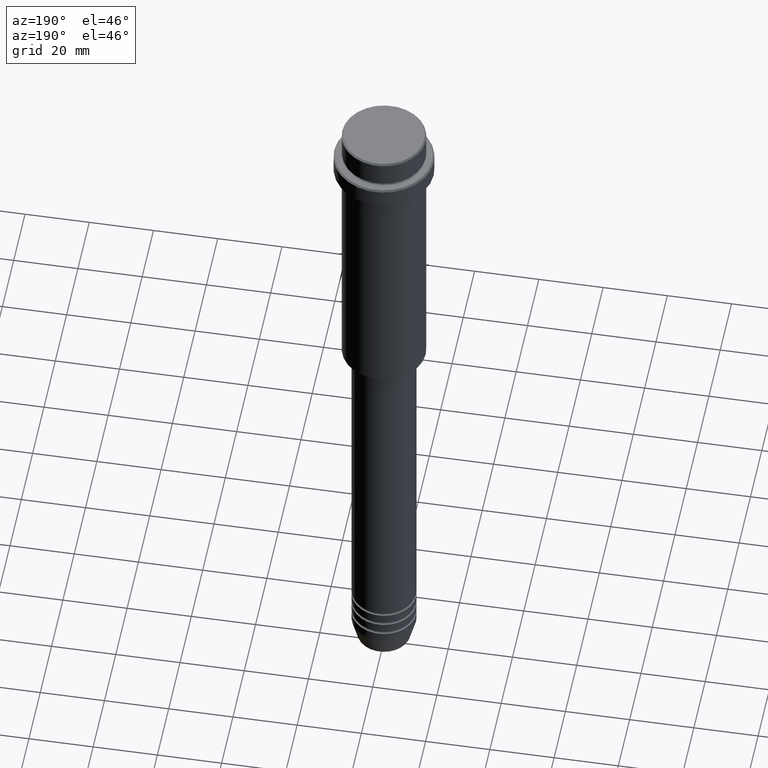
[diagram: clean part render]
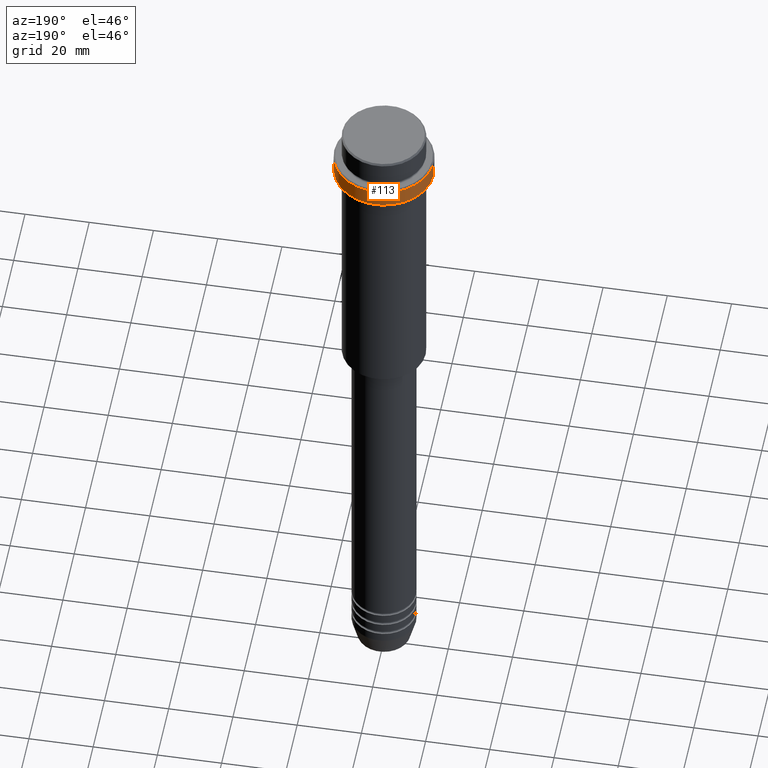
[diagram: same view with one face highlighted and labeled with its STEP entity id]
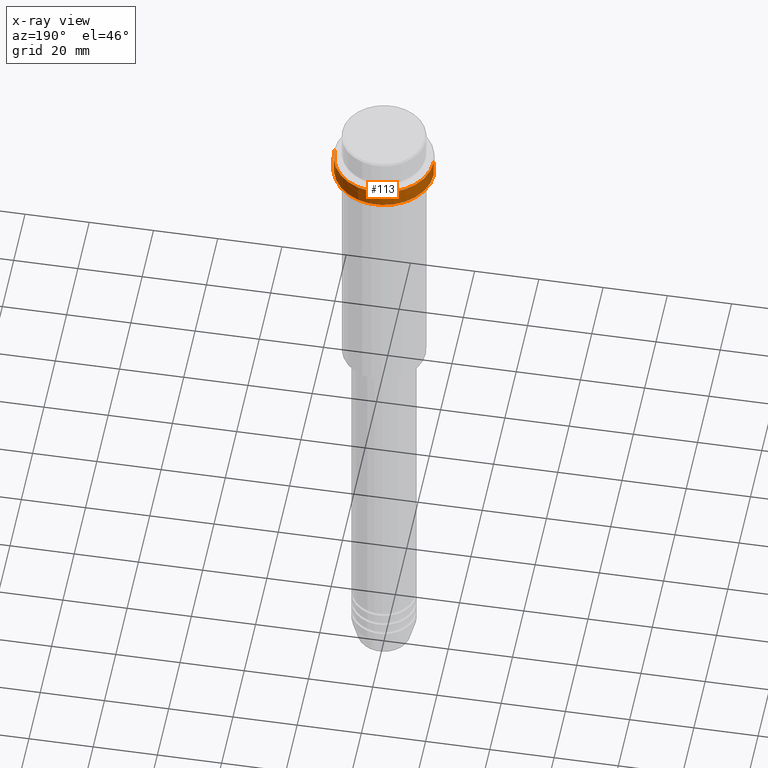
[diagram: x-ray of the same camera — body ghosted, the highlighted face saturated]
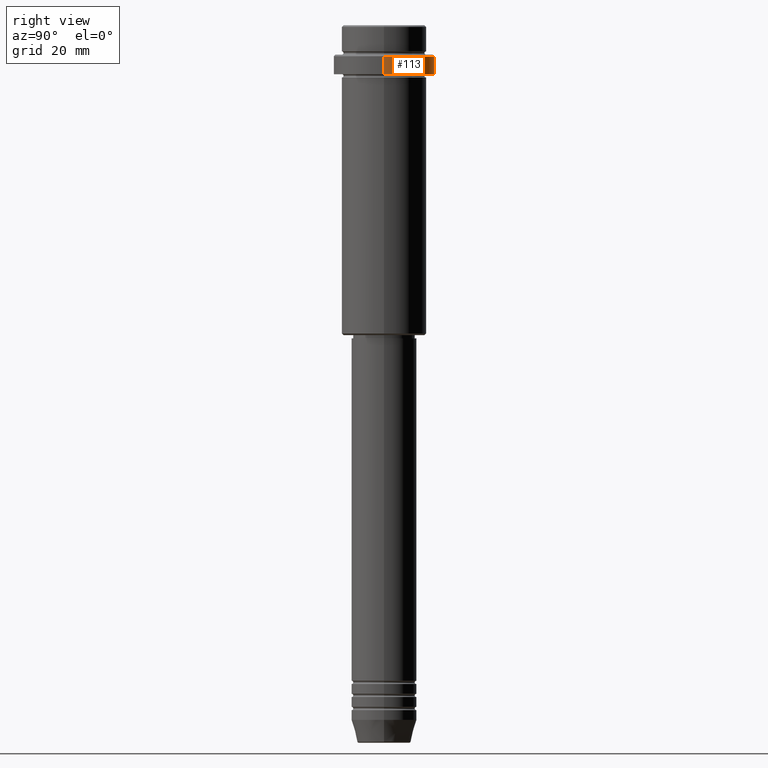
[diagram: same view with one face highlighted and labeled with its STEP entity id]
A machine part, auxiliary view. The second image highlights one B-rep face of the part: STEP entity #113.
The next image is the same camera in x-ray: the body ghosted, the highlighted face saturated — about 0% of this face is hidden behind the body in this view.
A second angle (right view) of the same face is appended — the face is thin or edge-on in the first view.
In plain terms, the highlighted cylindrical surface (partial cylindrical patch) has radius 15.5 mm, axis along (-0, -0, 1).
Its self-contained STEP definition (entity closure, byte-faithful):
#5 = VECTOR ( 'NONE', #163, 1000.000000000000000 ) ;
#70 = LINE ( 'NONE', #393, #1380 ) ;
#113 = ADVANCED_FACE ( 'NONE', ( #359 ), #1109, .T. ) ;
#163 = DIRECTION ( 'NONE',  ( -0.000000000000000000, -0.000000000000000000, 1.000000000000000000 ) ) ;
#175 = VERTEX_POINT ( 'NONE', #1349 ) ;
#275 = CARTESIAN_POINT ( 'NONE',  ( 15.50000000000000000, 0.000000000000000000, -15.00000000000000000 ) ) ;
#351 = AXIS2_PLACEMENT_3D ( 'NONE', #411, #832, #1281 ) ;
#359 = FACE_OUTER_BOUND ( 'NONE', #883, .T. ) ;
#393 = CARTESIAN_POINT ( 'NONE',  ( 15.50000000000000000, 0.000000000000000000, 0.000000000000000000 ) ) ;
#410 = ORIENTED_EDGE ( 'NONE', *, *, #866, .T. ) ;
#411 = CARTESIAN_POINT ( 'NONE',  ( 0.000000000000000000, 0.000000000000000000, -9.500000000000039080 ) ) ;
#441 = CIRCLE ( 'NONE', #351, 15.50000000000000000 ) ;
#475 = DIRECTION ( 'NONE',  ( -0.000000000000000000, -0.000000000000000000, 1.000000000000000000 ) ) ;
#484 = EDGE_CURVE ( 'NONE', #831, #585, #70, .T. ) ;
#511 = DIRECTION ( 'NONE',  ( -0.000000000000000000, -0.000000000000000000, 1.000000000000000000 ) ) ;
#518 = AXIS2_PLACEMENT_3D ( 'NONE', #1123, #475, #1348 ) ;
#541 = EDGE_CURVE ( 'NONE', #716, #585, #441, .T. ) ;
#585 = VERTEX_POINT ( 'NONE', #636 ) ;
#626 = ORIENTED_EDGE ( 'NONE', *, *, #484, .F. ) ;
#636 = CARTESIAN_POINT ( 'NONE',  ( 15.50000000000000000, 0.000000000000000000, -9.500000000000039080 ) ) ;
#716 = VERTEX_POINT ( 'NONE', #882 ) ;
#794 = ORIENTED_EDGE ( 'NONE', *, *, #933, .T. ) ;
#830 = DIRECTION ( 'NONE',  ( 1.000000000000000000, 0.000000000000000000, 0.000000000000000000 ) ) ;
#831 = VERTEX_POINT ( 'NONE', #275 ) ;
#832 = DIRECTION ( 'NONE',  ( 0.000000000000000000, 0.000000000000000000, -1.000000000000000000 ) ) ;
#866 = EDGE_CURVE ( 'NONE', #175, #716, #1029, .T. ) ;
#882 = CARTESIAN_POINT ( 'NONE',  ( -15.50000000000000000, 1.898202538678397557E-15, -9.500000000000039080 ) ) ;
#883 = EDGE_LOOP ( 'NONE', ( #794, #410, #1102, #626 ) ) ;
#933 = EDGE_CURVE ( 'NONE', #831, #175, #1116, .T. ) ;
#936 = CARTESIAN_POINT ( 'NONE',  ( 0.000000000000000000, 0.000000000000000000, -15.00000000000000000 ) ) ;
#1029 = LINE ( 'NONE', #1153, #5 ) ;
#1074 = AXIS2_PLACEMENT_3D ( 'NONE', #936, #511, #830 ) ;
#1102 = ORIENTED_EDGE ( 'NONE', *, *, #541, .T. ) ;
#1109 = CYLINDRICAL_SURFACE ( 'NONE', #518, 15.50000000000000000 ) ;
#1116 = CIRCLE ( 'NONE', #1074, 15.50000000000000000 ) ;
#1123 = CARTESIAN_POINT ( 'NONE',  ( 0.000000000000000000, 0.000000000000000000, 0.000000000000000000 ) ) ;
#1153 = CARTESIAN_POINT ( 'NONE',  ( -15.50000000000000000, 1.898202538678397557E-15, 0.000000000000000000 ) ) ;
#1281 = DIRECTION ( 'NONE',  ( 1.000000000000000000, 0.000000000000000000, 0.000000000000000000 ) ) ;
#1348 = DIRECTION ( 'NONE',  ( 1.000000000000000000, 0.000000000000000000, 0.000000000000000000 ) ) ;
#1349 = CARTESIAN_POINT ( 'NONE',  ( -15.50000000000000000, 1.898202538678397557E-15, -15.00000000000000000 ) ) ;
#1380 = VECTOR ( 'NONE', #1396, 1000.000000000000000 ) ;
#1396 = DIRECTION ( 'NONE',  ( -0.000000000000000000, -0.000000000000000000, 1.000000000000000000 ) ) ;